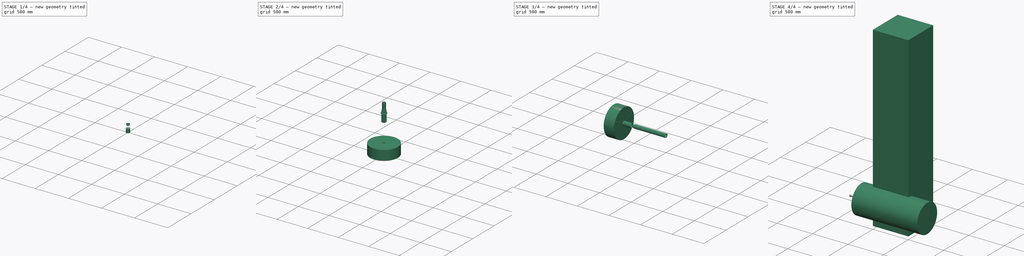
[diagram: build sequence overview — one tinted view per stage of 4, left to right]
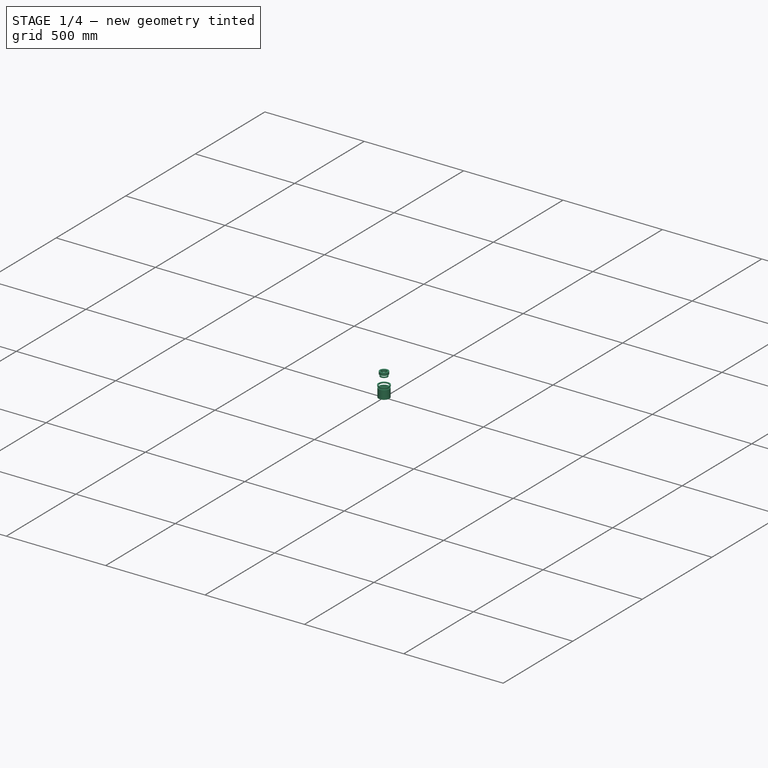
[diagram: stage 1 of 4 — iso view after this stage's code; geometry added in this stage tinted green]
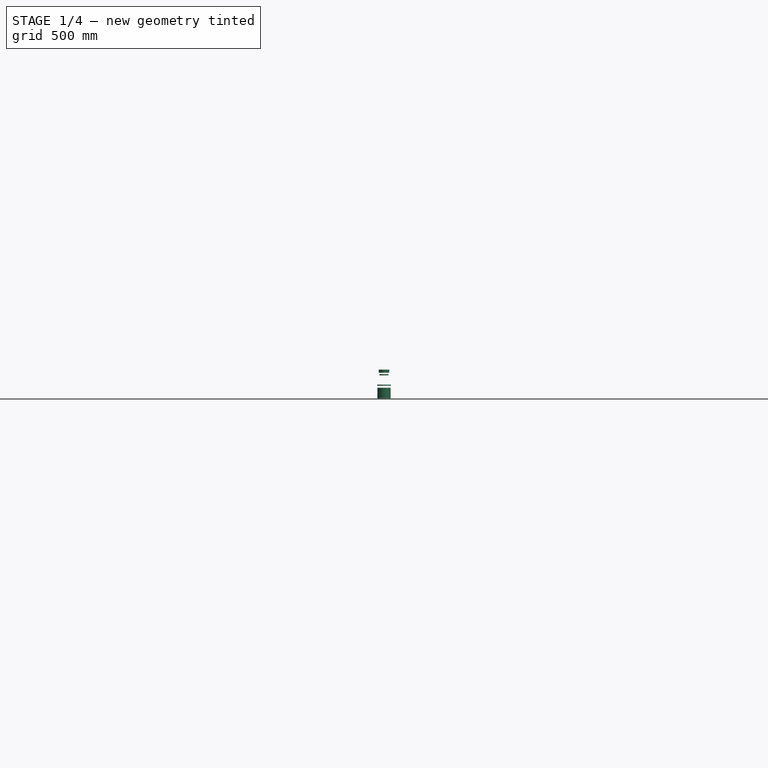
[diagram: stage 1 of 4 — front view after this stage's code; geometry added in this stage tinted green]
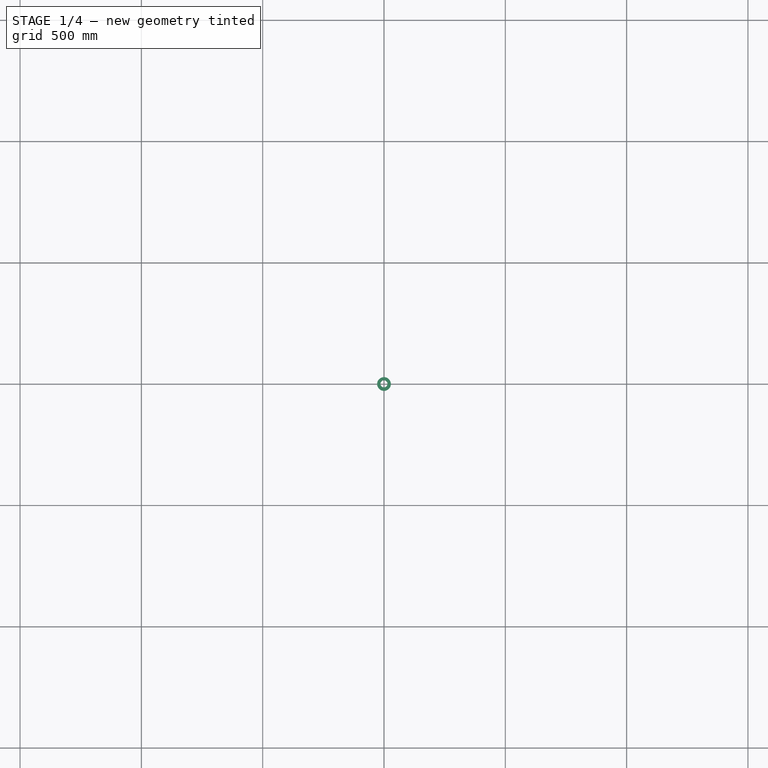
[diagram: stage 1 of 4 — top view after this stage's code; geometry added in this stage tinted green]
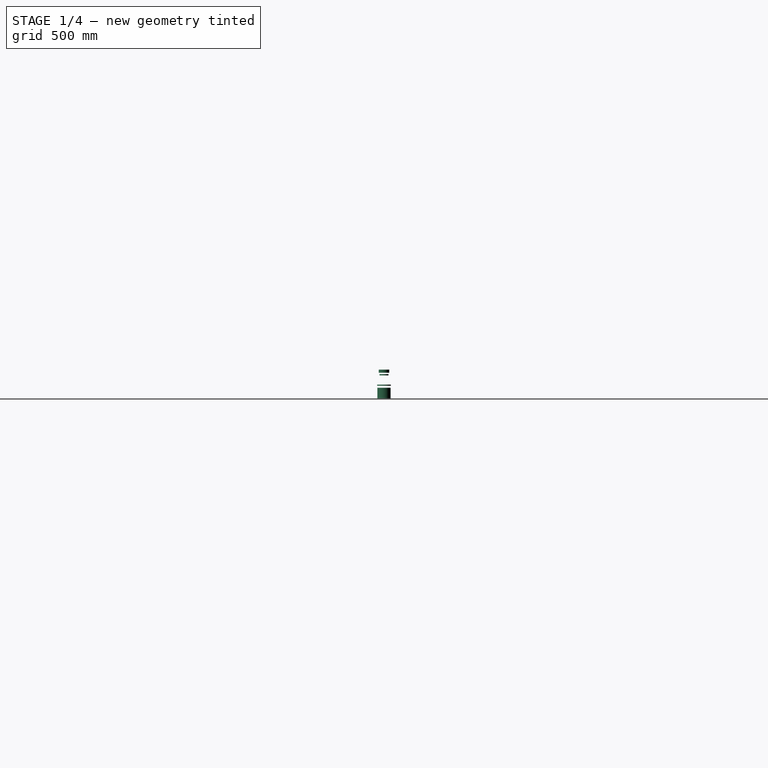
[diagram: stage 1 of 4 — right view after this stage's code; geometry added in this stage tinted green]
FCSTD DOCUMENT  (FreeCAD 0.20R29603 (Git))
Label: pseudoY0
License: All rights reserved
LicenseURL: http://en.wikipedia.org/wiki/All_rights_reserved
objects: Part::Feature×66, Sketcher::SketchObject×7, PartDesign::Revolution×7, PartDesign::Body×7, Part::MultiFuse×4, Part::Compound×1, Part::Cylinder×1, Part::Box×1, Part::Cut×1
note: 102 computed .brp shape members not serialized (recipe doc carries the construction recipe); baked Part::Feature solids carry a one-line shape summary decoded from their .brp

FEATURE [Sketcher::SketchObject] Sketch003
  FullyConstrained = false
  MapMode = 5
  Placement = pos=(0,0,0) rot=(0.57735,0.57735,0.57735;2.0944rad)
  Support = -> [YZ_Plane003]
  sketch-geometry (4):
    g0: LineSegment StartX=14.7194 StartY=182.505 StartZ=0 EndX=14.7194 EndY=169.649 EndZ=0
    g1: LineSegment StartX=14.7194 StartY=169.649 StartZ=0 EndX=21.7316 EndY=169.649 EndZ=0
    g2: LineSegment StartX=21.7316 StartY=169.649 StartZ=0 EndX=21.7316 EndY=182.505 EndZ=0
    g3: LineSegment StartX=21.7316 StartY=182.505 StartZ=0 EndX=14.7194 EndY=182.505 EndZ=0
  constraints (8):
    c: Vertical(g0)
    c: Coincident(g0,g1)
    c: Horizontal(g1)
    c: Coincident(g1,g2)
    c: Vertical(g2)
    c: Coincident(g2,g3)
    c: Coincident(g3,g0)
    c: Horizontal(g3)
FEATURE [PartDesign::Revolution] Revolution003
  AllowMultiFace = false
  Angle = 360
  Axis = (-2e-16,3e-16,1)
  Base = (0,0,0)
  Placement = pos=(0,0,0) rot=(0.57735,0.57735,0.57735;2.0944rad)
  Profile = -> Sketch003
  ReferenceAxis = -> Sketch003 [V_Axis]
  Reversed = true
FEATURE [PartDesign::Body] Body003  label="NozzlePatch1"
  Group = -> [Sketch003,Revolution003]
  Origin = -> Origin003
  Placement = pos=(0,0,600) rot=(0,0,1;0rad)
  Tip = -> Revolution003
FEATURE [Sketcher::SketchObject] Sketch004
  FullyConstrained = false
  MapMode = 5
  Placement = pos=(0,0,0) rot=(0.57735,0.57735,0.57735;2.0944rad)
  Support = -> [YZ_Plane004]
  sketch-geometry (4):
    g0: LineSegment StartX=14.4358 StartY=163.865 StartZ=0 EndX=18.5024 EndY=163.865 EndZ=0
    g1: LineSegment StartX=18.5024 StartY=163.865 StartZ=0 EndX=18.5024 EndY=158.746 EndZ=0
    g2: LineSegment StartX=18.5024 StartY=158.746 StartZ=0 EndX=14.4358 EndY=158.746 EndZ=0
    g3: LineSegment StartX=14.4358 StartY=158.746 StartZ=0 EndX=14.4358 EndY=163.865 EndZ=0
  constraints (8):
    c: Coincident(g0,g1)
    c: Coincident(g1,g2)
    c: Coincident(g2,g3)
    c: Coincident(g3,g0)
    c: Horizontal(g0)
    c: Horizontal(g2)
    c: Vertical(g1)
    c: Vertical(g3)
FEATURE [PartDesign::Revolution] Revolution004
  AllowMultiFace = false
  Angle = 360
  Axis = (-2e-16,3e-16,1)
  Base = (0,0,0)
  Placement = pos=(0,0,0) rot=(0.57735,0.57735,0.57735;2.0944rad)
  Profile = -> Sketch004
  ReferenceAxis = -> Sketch004 [V_Axis]
  Reversed = true
FEATURE [PartDesign::Body] Body004  label="NozzlePatch2"
  Group = -> [Sketch004,Revolution004]
  Origin = -> Origin004
  Placement = pos=(0,0,600) rot=(0,0,1;0rad)
  Tip = -> Revolution004
FEATURE [Sketcher::SketchObject] Sketch005
  FullyConstrained = false
  MapMode = 5
  Placement = pos=(0,0,0) rot=(0.57735,0.57735,0.57735;2.0944rad)
  Support = -> [YZ_Plane005]
  sketch-geometry (4):
    g0: LineSegment StartX=22.3843 StartY=120.786 StartZ=0 EndX=28.282 EndY=120.786 EndZ=0
    g1: LineSegment StartX=28.282 StartY=120.786 StartZ=0 EndX=28.282 EndY=115.977 EndZ=0
    g2: LineSegment StartX=28.282 StartY=115.977 StartZ=0 EndX=22.3843 EndY=115.977 EndZ=0
    g3: LineSegment StartX=22.3843 StartY=115.977 StartZ=0 EndX=22.3843 EndY=120.786 EndZ=0
  constraints (8):
    c: Coincident(g0,g1)
    c: Coincident(g1,g2)
    c: Coincident(g2,g3)
    c: Coincident(g3,g0)
    c: Horizontal(g0)
    c: Horizontal(g2)
    c: Vertical(g1)
    c: Vertical(g3)
FEATURE [PartDesign::Revolution] Revolution005
  AllowMultiFace = false
  Angle = 360
  Axis = (-2e-16,3e-16,1)
  Base = (0,0,0)
  Placement = pos=(0,0,0) rot=(0.57735,0.57735,0.57735;2.0944rad)
  Profile = -> Sketch005
  ReferenceAxis = -> Sketch005 [V_Axis]
  Reversed = true
FEATURE [PartDesign::Body] Body002  label="NozzlePatch5"
  Group = -> [Sketch002,Revolution007]
  Origin = -> Origin002
  Placement = pos=(0,0,600) rot=(0,0,1;0rad)
  Tip = -> Revolution007
FEATURE [PartDesign::Revolution] Revolution008
  AllowMultiFace = false
  Angle = 360
  Axis = (-2e-16,3e-16,1)
  Base = (0,0,0)
  Placement = pos=(0,0,0) rot=(0.57735,0.57735,0.57735;2.0944rad)
  Profile = -> Sketch006
  ReferenceAxis = -> Sketch006 [V_Axis]
  Reversed = true
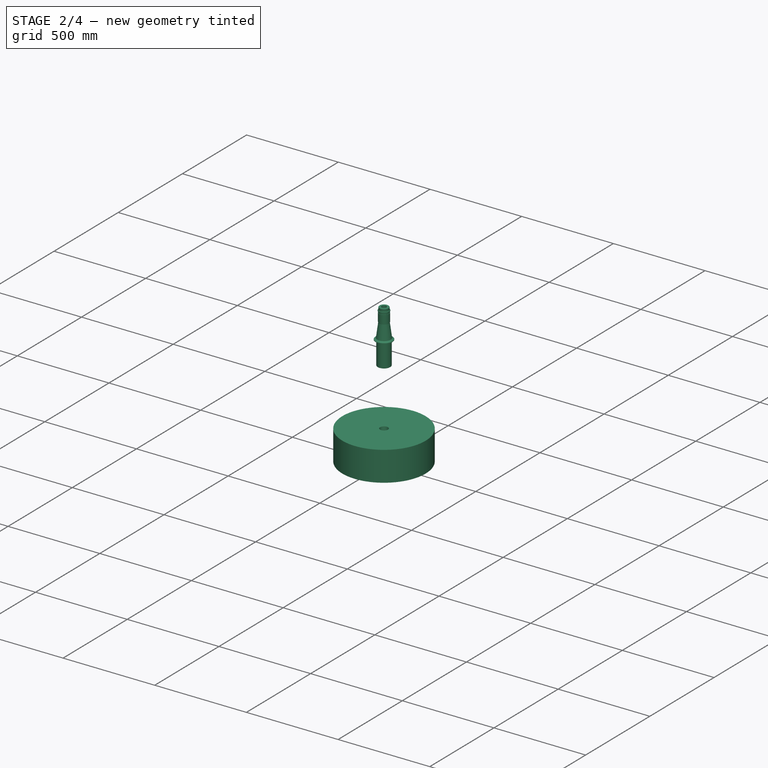
[diagram: stage 2 of 4 — iso view after this stage's code; geometry added in this stage tinted green]
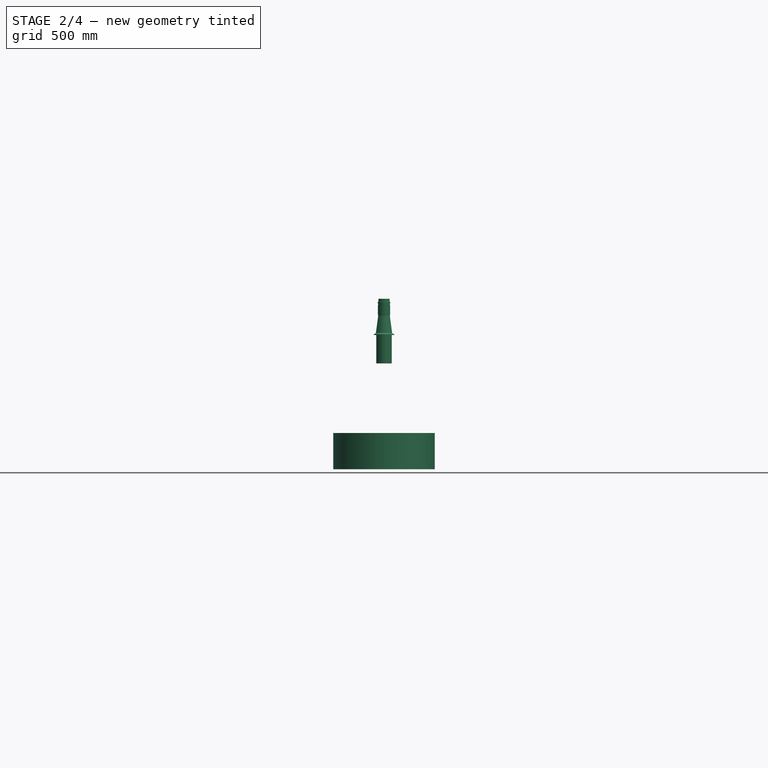
[diagram: stage 2 of 4 — front view after this stage's code; geometry added in this stage tinted green]
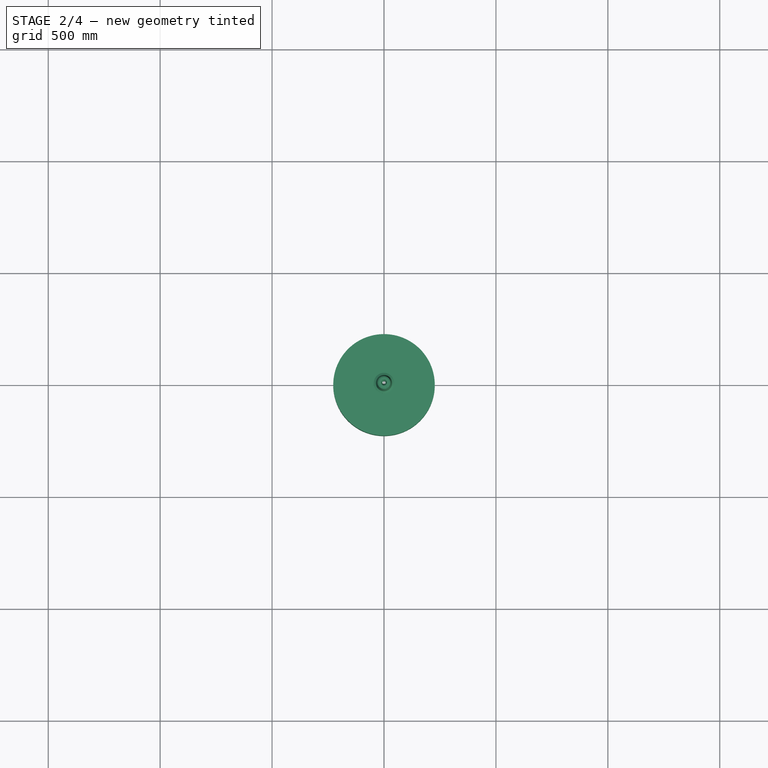
[diagram: stage 2 of 4 — top view after this stage's code; geometry added in this stage tinted green]
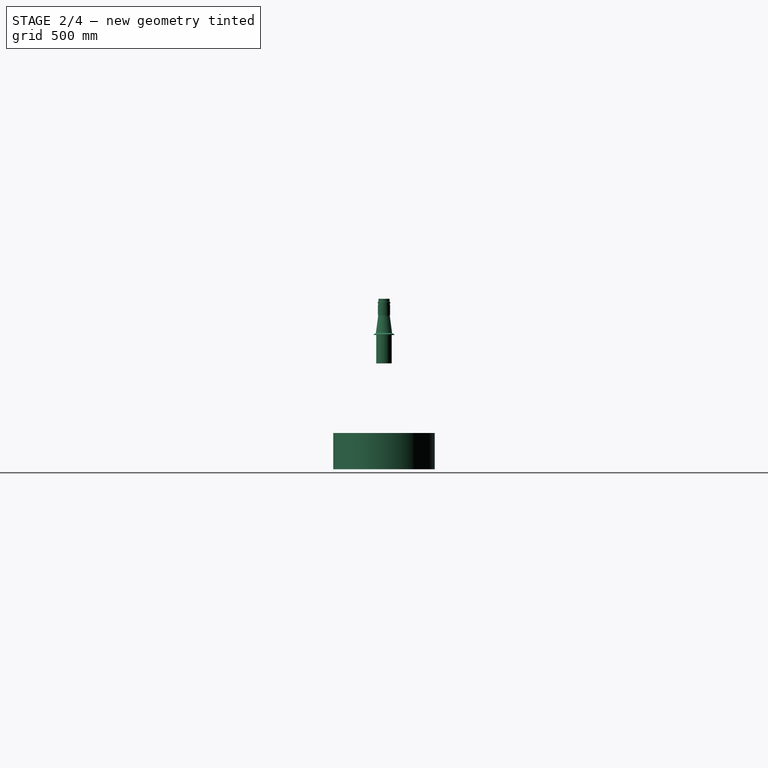
[diagram: stage 2 of 4 — right view after this stage's code; geometry added in this stage tinted green]
FEATURE [Sketcher::SketchObject] Sketch002
  FullyConstrained = false
  MapMode = 5
  Placement = pos=(0,0,0) rot=(0.57735,0.57735,0.57735;2.0944rad)
  Support = -> [YZ_Plane002]
  sketch-geometry (5):
    g0: LineSegment StartX=31.9833 StartY=73.9 StartZ=0 EndX=226.816 EndY=73.9 EndZ=0
    g1: LineSegment StartX=226.816 StartY=73.9 StartZ=0 EndX=226.816 EndY=236 EndZ=0
    g2: LineSegment StartX=226.816 StartY=236 StartZ=0 EndX=21.724 EndY=236 EndZ=0
    g3: LineSegment StartX=21.724 StartY=236 StartZ=0 EndX=17.3205 EndY=195.963 EndZ=0
    g4: LineSegment StartX=17.3205 StartY=195.963 StartZ=0 EndX=31.9833 EndY=73.9 EndZ=0
  constraints (10):
    c: Horizontal(g0)
    c: Coincident(g1,g0)
    c: Vertical(g1)
    c: Coincident(g2,g1)
    c: Horizontal(g2)
    c: Coincident(g4,g3)
    c: Coincident(g4,g0)
    c: DistanceY(g-1,g0) = 73.9
    c: DistanceY(g-1,g2) = 236
    c: Coincident(g2,g3)
FEATURE [Part::Feature] Part__Feature  label="Mach-4p5-Divergent-Mod"
  shape: bbox 238 x 92 x 120.9 mm, 33 faces (baked)
FEATURE [Part::Feature] Part__Feature001  label="Mach-4p5-Throat"
  shape: bbox 76 x 56.28 x 56.28 mm, 66 faces (baked)
FEATURE [Part::Feature] Part__Feature002  label="o-rings_33"
  Placement = pos=(20.5,0,0) rot=(0,1,0;1.5708rad)
  shape: bbox 3 x 42.21 x 42.21 mm, 4 faces (baked)
FEATURE [Part::Feature] Part__Feature003  label="o-rings_47"
  Placement = pos=(-18.4,0,0) rot=(0,-1,0;1.5708rad)
  shape: bbox 3 x 57.91 x 57.91 mm, 4 faces (baked)
FEATURE [Part::MultiFuse] Fusion  label="Nozzle"
  Placement = pos=(0,0,800) rot=(0,1,0;1.5708rad)
  Shapes = -> [Part__Feature,Part__Feature003,Part__Feature002,Part__Feature001]
FEATURE [PartDesign::Body] Body005  label="NozzlePatch3"
  Group = -> [Sketch005,Revolution005]
  Origin = -> Origin005
  Placement = pos=(0,0,700) rot=(0,0,1;0rad)
  Tip = -> Revolution005
FEATURE [Sketcher::SketchObject] Sketch006
  FullyConstrained = false
  MapMode = 5
  Placement = pos=(0,0,0) rot=(0.57735,0.57735,0.57735;2.0944rad)
  Support = -> [YZ_Plane006]
  sketch-geometry (8):
    g0: LineSegment StartX=18.2755 StartY=86.9822 StartZ=0 EndX=22.6622 EndY=86.9822 EndZ=0
    g1: LineSegment StartX=22.8225 StartY=83.2271 StartZ=0 EndX=18.2755 EndY=83.2271 EndZ=0
    g2: LineSegment StartX=18.2755 StartY=83.2271 StartZ=0 EndX=18.2755 EndY=86.9822 EndZ=0
    g3: LineSegment StartX=22.6622 StartY=86.9822 StartZ=0 EndX=22.6622 EndY=107.775 EndZ=0
    g4: LineSegment StartX=22.6622 StartY=107.775 StartZ=0 EndX=27.3936 EndY=107.775 EndZ=0
    g5: LineSegment StartX=27.3936 StartY=107.775 StartZ=0 EndX=27.3936 EndY=63.803 EndZ=0
    g6: LineSegment StartX=27.3936 StartY=63.803 StartZ=0 EndX=22.8225 EndY=63.803 EndZ=0
    g7: LineSegment StartX=22.8225 StartY=63.803 StartZ=0 EndX=22.8225 EndY=83.2271 EndZ=0
  constraints (16):
    c: Coincident(g1,g2)
    c: Coincident(g2,g0)
    c: Horizontal(g0)
    c: Horizontal(g1)
    c: Vertical(g2)
    c: Coincident(g0,g3)
    c: Vertical(g3)
    c: Coincident(g3,g4)
    c: Horizontal(g4)
    c: Coincident(g4,g5)
    c: Vertical(g5)
    c: Coincident(g5,g6)
    c: Horizontal(g6)
    c: Coincident(g6,g7)
    c: Coincident(g7,g1)
    c: Vertical(g7)
FEATURE [PartDesign::Revolution] Revolution007
  AllowMultiFace = false
  Angle = 360
  Axis = (-2e-16,3e-16,1)
  Base = (0,0,0)
  Placement = pos=(0,0,0) rot=(0.57735,0.57735,0.57735;2.0944rad)
  Profile = -> Sketch002
  ReferenceAxis = -> Sketch002 [V_Axis]
  Reversed = true
FEATURE [PartDesign::Body] Body006  label="NozzlePatch4"
  Group = -> [Sketch006,Revolution008]
  Origin = -> Origin006
  Placement = pos=(0,0,700) rot=(0,0,1;0rad)
  Tip = -> Revolution008
FEATURE [Part::MultiFuse] Fusion001  label="NozzlePartiallyPatched"
  Shapes = -> [Fusion,Body005,Body004,Body003,Body006]
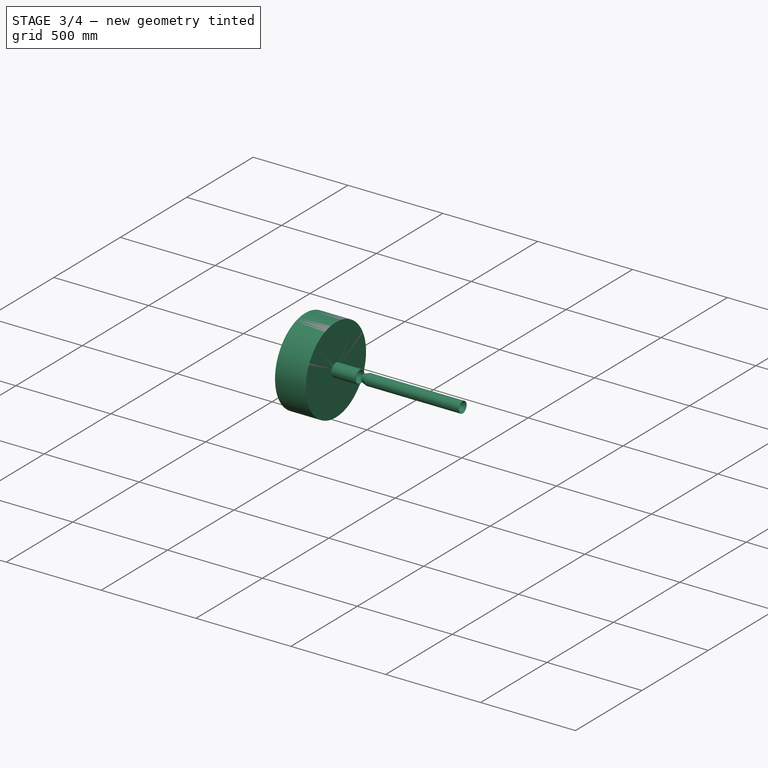
[diagram: stage 3 of 4 — iso view after this stage's code; geometry added in this stage tinted green]
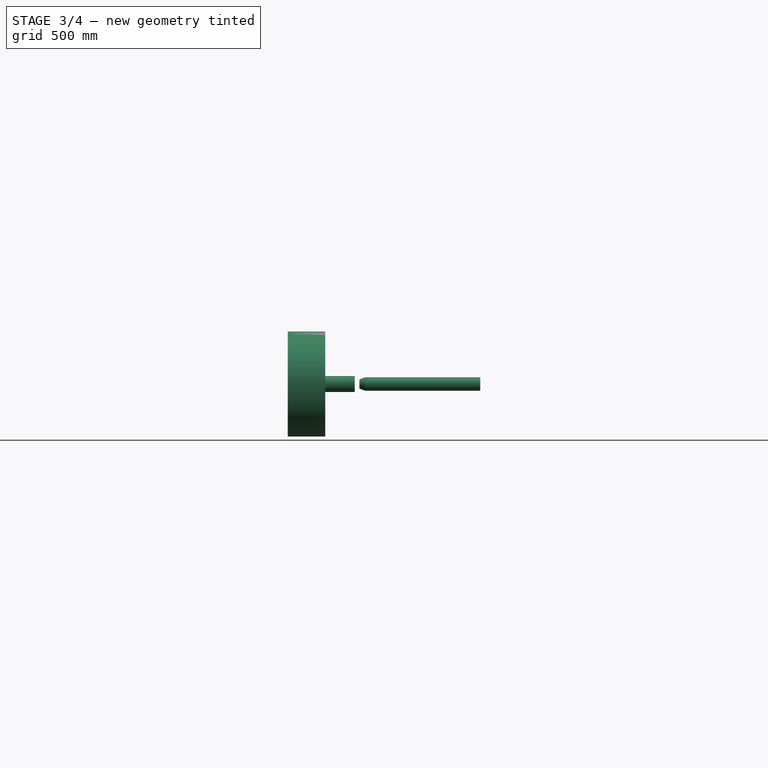
[diagram: stage 3 of 4 — front view after this stage's code; geometry added in this stage tinted green]
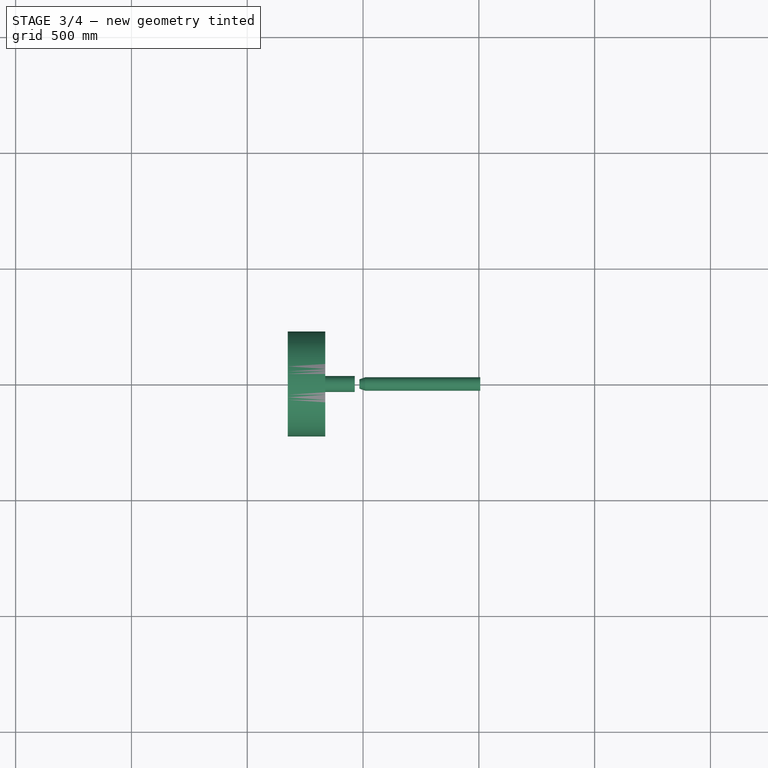
[diagram: stage 3 of 4 — top view after this stage's code; geometry added in this stage tinted green]
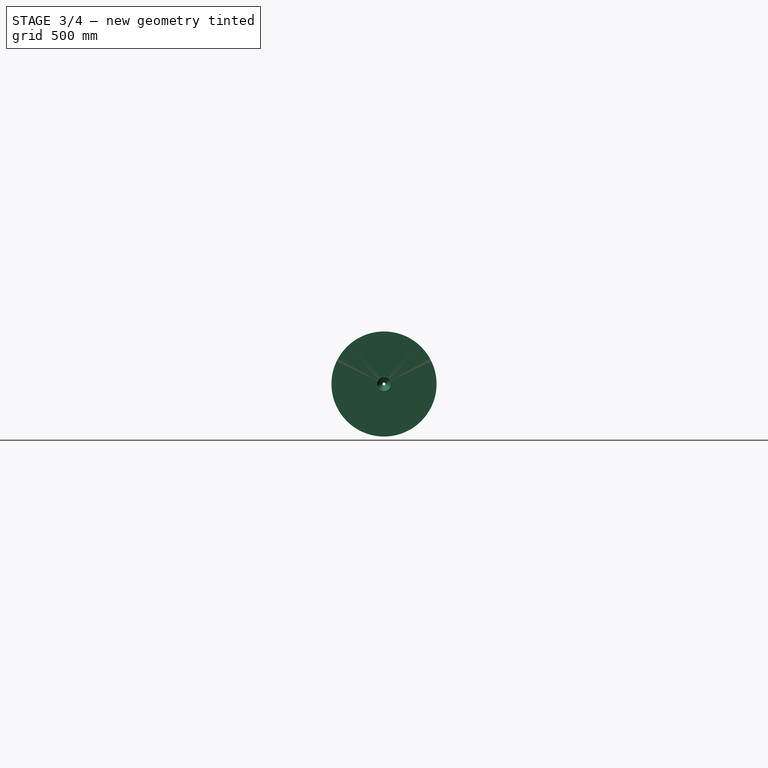
[diagram: stage 3 of 4 — right view after this stage's code; geometry added in this stage tinted green]
FEATURE [Part::Feature] Circular_scramjet_low_enthalpy_config
  Placement = pos=(0,0,0) rot=(0,1,0;3.14159rad)
  shape: bbox 101.6 x 129.9 x 56 mm, 208 faces, 0 solids (baked)
FEATURE [Part::Feature] Circular_scramjet_low_enthalpy_config001
  Placement = pos=(0,0,0) rot=(0.044282,0.999019,0;3.14159rad)
  shape: bbox 63.66 x 63.66 x 25.69 mm, 17 faces, 0 solids (baked)
FEATURE [Part::Feature] Circular_scramjet_low_enthalpy_config002
  Placement = pos=(0,59.8375,67) rot=(-0.939108,0.242978,0.242978;1.63358rad)
  shape: bbox 14.32 x 39.1 x 13.69 mm, 33 faces, 0 solids (baked)
FEATURE [Part::Feature] Circular_scramjet_low_enthalpy_config003
  Placement = pos=(0,59.8375,82) rot=(-0.939108,0.242978,0.242978;1.63358rad)
  shape: bbox 14.32 x 39.1 x 13.69 mm, 33 faces, 0 solids (baked)
FEATURE [Part::Feature] Circular_scramjet_low_enthalpy_config004
  Placement = pos=(0,59.8375,97) rot=(-0.939108,0.242978,0.242978;1.63358rad)
  shape: bbox 14.32 x 39.1 x 13.69 mm, 33 faces, 0 solids (baked)
FEATURE [Part::Feature] Circular_scramjet_low_enthalpy_config005
  Placement = pos=(0,59.8375,112) rot=(-0.939108,0.242978,0.242978;1.63358rad)
  shape: bbox 14.32 x 39.1 x 13.69 mm, 33 faces, 0 solids (baked)
FEATURE [Part::Feature] Circular_scramjet_low_enthalpy_config006
  Placement = pos=(0,59.8375,127) rot=(-0.939108,0.242978,0.242978;1.63358rad)
  shape: bbox 14.32 x 39.1 x 13.69 mm, 33 faces, 0 solids (baked)
FEATURE [Part::Feature] Circular_scramjet_low_enthalpy_config007
  Placement = pos=(0,59.8375,142) rot=(-0.939108,0.242978,0.242978;1.63358rad)
  shape: bbox 14.32 x 39.1 x 13.69 mm, 33 faces, 0 solids (baked)
FEATURE [Part::Feature] Circular_scramjet_low_enthalpy_config008
  Placement = pos=(0,59.8375,157) rot=(-0.939108,0.242978,0.242978;1.63358rad)
  shape: bbox 14.32 x 39.1 x 13.69 mm, 33 faces, 0 solids (baked)
FEATURE [Part::Feature] Circular_scramjet_low_enthalpy_config009
  Placement = pos=(0,59.8375,172) rot=(-0.939108,0.242978,0.242978;1.63358rad)
  shape: bbox 14.32 x 39.1 x 13.69 mm, 33 faces, 0 solids (baked)
FEATURE [Part::Feature] Circular_scramjet_low_enthalpy_config010
  Placement = pos=(0,59.8375,187) rot=(-0.939108,0.242978,0.242978;1.63358rad)
  shape: bbox 14.32 x 39.1 x 13.69 mm, 33 faces, 0 solids (baked)
FEATURE [Part::Feature] Circular_scramjet_low_enthalpy_config011
  Placement = pos=(0,59.8375,202) rot=(-0.939108,0.242978,0.242978;1.63358rad)
  shape: bbox 14.32 x 39.1 x 13.69 mm, 33 faces, 0 solids (baked)
FEATURE [Part::Feature] Circular_scramjet_low_enthalpy_config012
  Placement = pos=(0,59.8375,217) rot=(-0.939108,0.242978,0.242978;1.63358rad)
  shape: bbox 14.32 x 39.1 x 13.69 mm, 33 faces, 0 solids (baked)
FEATURE [Part::Feature] Circular_scramjet_low_enthalpy_config013
  Placement = pos=(0,59.8375,285) rot=(-0.939108,0.242978,0.242978;1.63358rad)
  shape: bbox 14.32 x 39.1 x 13.69 mm, 33 faces, 0 solids (baked)
FEATURE [Part::Feature] Circular_scramjet_low_enthalpy_config014
  Placement = pos=(0,59.8375,300) rot=(-0.939108,0.242978,0.242978;1.63358rad)
  shape: bbox 14.32 x 39.1 x 13.69 mm, 33 faces, 0 solids (baked)
FEATURE [Part::Feature] Circular_scramjet_low_enthalpy_config015
  Placement = pos=(0,59.8375,315) rot=(-0.939108,0.242978,0.242978;1.63358rad)
  shape: bbox 14.32 x 39.1 x 13.69 mm, 33 faces, 0 solids (baked)
FEATURE [Part::Feature] Circular_scramjet_low_enthalpy_config016
  Placement = pos=(0,59.8375,330) rot=(-0.939108,0.242978,0.242978;1.63358rad)
  shape: bbox 14.32 x 39.1 x 13.69 mm, 33 faces, 0 solids (baked)
FEATURE [Part::Feature] Circular_scramjet_low_enthalpy_config017
  Placement = pos=(0,59.8375,345) rot=(-0.939108,0.242978,0.242978;1.63358rad)
  shape: bbox 14.32 x 39.1 x 13.69 mm, 33 faces, 0 solids (baked)
FEATURE [Part::Feature] Circular_scramjet_low_enthalpy_config018
  Placement = pos=(0,59.8375,360) rot=(-0.939108,0.242978,0.242978;1.63358rad)
  shape: bbox 14.32 x 39.1 x 13.69 mm, 33 faces, 0 solids (baked)
FEATURE [Part::Feature] Circular_scramjet_low_enthalpy_config019
  Placement = pos=(0,59.8375,375) rot=(-0.939108,0.242978,0.242978;1.63358rad)
  shape: bbox 14.32 x 39.1 x 13.69 mm, 33 faces, 0 solids (baked)
FEATURE [Part::Feature] Circular_scramjet_low_enthalpy_config020
  Placement = pos=(0,59.8375,390) rot=(-0.939108,0.242978,0.242978;1.63358rad)
  shape: bbox 14.32 x 39.1 x 13.69 mm, 33 faces, 0 solids (baked)
FEATURE [Part::Feature] Circular_scramjet_low_enthalpy_config021
  Placement = pos=(0,59.8375,405) rot=(-0.939108,0.242978,0.242978;1.63358rad)
  shape: bbox 14.32 x 39.1 x 13.69 mm, 33 faces, 0 solids (baked)
FEATURE [Part::Feature] Circular_scramjet_low_enthalpy_config022
  Placement = pos=(0,59.8375,420) rot=(-0.939108,0.242978,0.242978;1.63358rad)
  shape: bbox 14.32 x 39.1 x 13.69 mm, 33 faces, 0 solids (baked)
FEATURE [Part::Feature] Circular_scramjet_low_enthalpy_config023
  Placement = pos=(0,59.8375,435) rot=(-0.939108,0.242978,0.242978;1.63358rad)
  shape: bbox 14.32 x 39.1 x 13.69 mm, 33 faces, 0 solids (baked)
FEATURE [Part::Feature] Circular_scramjet_low_enthalpy_config024
  Placement = pos=(0,0,251) rot=(0.92388,-0.382683,0;3.14159rad)
  shape: bbox 109.1 x 109.1 x 54 mm, 142 faces, 0 solids (baked)
FEATURE [Part::Feature] Circular_scramjet_low_enthalpy_config025
  Placement = pos=(-24.3952,-24.3952,251) rot=(0.382683,0.92388,0;3.14159rad)
  shape: bbox 20.83 x 20.83 x 54 mm, 67 faces, 0 solids (baked)
FEATURE [Part::Feature] Circular_scramjet_low_enthalpy_config026
  Placement = pos=(-24.3087,-24.3087,230) rot=(0.904622,0.374707,0.203111;2.22979rad)
  shape: bbox 9.504 x 9.504 x 10.6 mm, 24 faces, 0 solids (baked)
FEATURE [Part::Feature] Circular_scramjet_low_enthalpy_config027
  Placement = pos=(-24.3087,-24.3087,272) rot=(0.92388,0.382683,0;3.14159rad)
  shape: bbox 8.114 x 8.114 x 7.657 mm, 24 faces, 0 solids (baked)
FEATURE [Part::Feature] Circular_scramjet_low_enthalpy_config028
  Placement = pos=(24.3087,-24.3087,272) rot=(0.382683,0.92388,0;3.14159rad)
  shape: bbox 8.114 x 8.114 x 7.657 mm, 24 faces, 0 solids (baked)
FEATURE [Part::Feature] Circular_scramjet_low_enthalpy_config029
  Placement = pos=(24.3087,24.3087,272) rot=(-0.382683,0.92388,0;3.14159rad)
  shape: bbox 8.114 x 8.114 x 7.657 mm, 24 faces, 0 solids (baked)
FEATURE [Part::Feature] Circular_scramjet_low_enthalpy_config030
  Placement = pos=(-24.3087,24.3087,272) rot=(0.92388,-0.382683,0;3.14159rad)
  shape: bbox 8.114 x 8.114 x 7.657 mm, 24 faces, 0 solids (baked)
FEATURE [Part::Feature] Circular_scramjet_low_enthalpy_config031
  Placement = pos=(24.3087,-24.3087,230) rot=(0.342174,0.826081,0.447779;2.77481rad)
  shape: bbox 9.504 x 9.504 x 10.6 mm, 24 faces, 0 solids (baked)
FEATURE [Part::Feature] Circular_scramjet_low_enthalpy_config032
  Placement = pos=(24.3087,24.3087,230) rot=(-0.342174,0.826081,0.447779;3.50838rad)
  shape: bbox 9.504 x 9.504 x 10.6 mm, 24 faces, 0 solids (baked)
FEATURE [Part::Feature] Circular_scramjet_low_enthalpy_config033
  Placement = pos=(-24.3087,24.3087,230) rot=(0.904622,-0.374707,-0.203111;2.22979rad)
  shape: bbox 9.504 x 9.504 x 10.6 mm, 24 faces, 0 solids (baked)
FEATURE [Part::Feature] Circular_scramjet_low_enthalpy_config034
  Placement = pos=(24.3952,-24.3952,251) rot=(-0.382683,0.92388,0;3.14159rad)
  shape: bbox 20.83 x 20.83 x 54 mm, 67 faces, 0 solids (baked)
FEATURE [Part::Feature] Circular_scramjet_low_enthalpy_config035
  Placement = pos=(24.3952,24.3952,251) rot=(0.92388,-0.382683,0;3.14159rad)
  shape: bbox 20.83 x 20.83 x 54 mm, 67 faces, 0 solids (baked)
FEATURE [Part::Feature] Circular_scramjet_low_enthalpy_config036
  Placement = pos=(-24.3952,24.3952,251) rot=(0.92388,0.382683,0;3.14159rad)
  shape: bbox 20.83 x 20.83 x 54 mm, 67 faces, 0 solids (baked)
FEATURE [Part::Feature] Circular_scramjet_low_enthalpy_config037
  Placement = pos=(20.8597,-20.8597,251) rot=(0.92388,-0.382683,0;3.14159rad)
  shape: bbox 30.45 x 30.45 x 16.42 mm, 63 faces, 0 solids (baked)
FEATURE [Part::Feature] Circular_scramjet_low_enthalpy_config038
  Placement = pos=(-20.8597,-20.8597,251) rot=(-0.382683,0.92388,0;3.14159rad)
  shape: bbox 30.45 x 30.45 x 16.42 mm, 63 faces, 0 solids (baked)
FEATURE [Part::Feature] Circular_scramjet_low_enthalpy_config039
  Placement = pos=(-20.8597,20.8597,251) rot=(0.382683,0.92388,0;3.14159rad)
  shape: bbox 30.45 x 30.45 x 16.42 mm, 63 faces, 0 solids (baked)
FEATURE [Part::Feature] Circular_scramjet_low_enthalpy_config040
  Placement = pos=(20.8597,20.8597,251) rot=(0.92388,0.382683,0;3.14159rad)
  shape: bbox 30.45 x 30.45 x 16.42 mm, 63 faces, 0 solids (baked)
FEATURE [Part::Feature] Circular_scramjet_low_enthalpy_config041
  Placement = pos=(0,-68,225) rot=(0,-1,0;1.5708rad)
  shape: bbox 16 x 41 x 50.3 mm, 20 faces, 0 solids (baked)
FEATURE [Part::Feature] Circular_scramjet_low_enthalpy_config042
  Placement = pos=(0,-78.7,250) rot=(0,0,1;0rad)
  shape: bbox 120 x 12.7 x 50 mm, 48 faces, 0 solids (baked)
FEATURE [Part::Feature] Circular_scramjet_low_enthalpy_config043
  Placement = pos=(0,-77.176,266) rot=(0.650859,0.650859,-0.390852;3.88678rad)
  shape: bbox 10.87 x 17.53 x 12.54 mm, 27 faces, 0 solids (baked)
FEATURE [Part::Feature] Circular_scramjet_low_enthalpy_config044
  Placement = pos=(0,-77.176,237) rot=(0.087873,0.087873,0.992248;1.57858rad)
  shape: bbox 12.03 x 17.53 x 9.319 mm, 27 faces, 0 solids (baked)
FEATURE [Part::Feature] Circular_scramjet_low_enthalpy_config045
  Placement = pos=(0,-39.826,253) rot=(0.707107,0.707107,0;3.14159rad)
  shape: bbox 11.22 x 17.53 x 8.033 mm, 27 faces, 0 solids (baked)
FEATURE [Part::Feature] Circular_scramjet_low_enthalpy_config046
  Placement = pos=(0,0,362) rot=(0,0,1;3.14159rad)
  shape: bbox 47.63 x 47.63 x 200 mm, 87 faces, 0 solids (baked)
FEATURE [Part::Feature] Circular_scramjet_low_enthalpy_config047
  Placement = pos=(0,27.075,360) rot=(0.707107,0,-0.707107;3.14159rad)
  shape: bbox 16.64 x 9.525 x 168 mm, 28 faces, 0 solids (baked)
FEATURE [Part::Feature] Circular_scramjet_low_enthalpy_config048
  Placement = pos=(0,0,446) rot=(0,1,0;3.14159rad)
  shape: bbox 58.7 x 102.5 x 60 mm, 34 faces, 0 solids (baked)
FEATURE [Part::Feature] Circular_scramjet_low_enthalpy_config049
  Placement = pos=(0,-68,446) rot=(0,-1,0;1.5708rad)
  shape: bbox 16 x 41 x 50.3 mm, 20 faces, 0 solids (baked)
FEATURE [Part::Feature] Circular_scramjet_low_enthalpy_config050
  Placement = pos=(0,-78.7,471) rot=(0,0,1;0rad)
  shape: bbox 120 x 12.7 x 50 mm, 48 faces, 0 solids (baked)
FEATURE [Part::Feature] Circular_scramjet_low_enthalpy_config051
  Placement = pos=(0,-77.176,487) rot=(0,0,1;1.5708rad)
  shape: bbox 11.22 x 17.53 x 8.033 mm, 27 faces, 0 solids (baked)
FEATURE [Part::Feature] Circular_scramjet_low_enthalpy_config052
  Placement = pos=(0,-77.176,458) rot=(0.707107,0.707107,0;3.14159rad)
  shape: bbox 11.22 x 17.53 x 8.033 mm, 27 faces, 0 solids (baked)
FEATURE [Part::Feature] Circular_scramjet_low_enthalpy_config053
  Placement = pos=(0,-39.826,474) rot=(0,0,1;1.5708rad)
  shape: bbox 11.22 x 17.53 x 8.033 mm, 27 faces, 0 solids (baked)
FEATURE [Part::Feature] Circular_scramjet_low_enthalpy_config054
  Placement = pos=(0,0,140) rot=(1,0,0;3.14159rad)
  shape: bbox 47.63 x 47.63 x 200 mm, 87 faces, 0 solids (baked)
FEATURE [Part::Feature] Circular_scramjet_low_enthalpy_config055
  Placement = pos=(0,27.075,142) rot=(0.707107,0,0.707107;3.14159rad)
  shape: bbox 16.64 x 9.525 x 168 mm, 28 faces, 0 solids (baked)
FEATURE [Part::Compound] Compound  label="ExperimentCAD"
  Links = -> [Circular_scramjet_low_enthalpy_config,Circular_scramjet_low_enthalpy_config036,Circular_scramjet_low_enthalpy_config030,Circular_scramjet_low_enthalpy_config034,Circular_scramjet_low_enthalpy_config004,Circular_scramjet_low_enthalpy_config001,Circular_scramjet_low_enthalpy_config005,Circular_scramjet_low_enthalpy_config008,Circular_scramjet_low_enthalpy_config028,+47 more]
FEATURE [Part::Feature] Compound_cs  label="ExperimentCADCS"
  shape: bbox 0.01139 x 138.5 x 521.9 mm, 0 faces, 0 solids (baked)
FEATURE [Sketcher::SketchObject] Sketch
  FullyConstrained = false
  MapMode = 5
  Placement = pos=(0,0,0) rot=(0.57735,0.57735,0.57735;2.0944rad)
  Support = -> [YZ_Plane]
  sketch-geometry (5):
    g0: LineSegment StartX=17.4511 StartY=-1.97739 StartZ=0 EndX=19.9 EndY=-15.8946 EndZ=0
    g1: LineSegment StartX=19.9 StartY=-15.8946 StartZ=0 EndX=28.9991 EndY=9.10592 EndZ=0
    g2: LineSegment StartX=28.9991 StartY=9.10592 StartZ=0 EndX=29.0003 EndY=505.999 EndZ=0
    g3: LineSegment StartX=29.0003 StartY=505.999 StartZ=0 EndX=17.5003 EndY=486.082 EndZ=0
    g4: LineSegment StartX=17.5003 StartY=486.082 StartZ=0 EndX=17.4511 EndY=-1.97739 EndZ=0
  constraints (13):
    c: DistanceX(g0) = 19.9
    c: DistanceY(g0) = -15.8946
    c: Coincident(g1,g2)
    c: Coincident(g0,g4)
    c: Coincident(g3,g4)
    c: DistanceX(g1) = 28.9991
    c: DistanceY(g1) = 9.10592
    c: DistanceX(g3) = 17.5003
    c: DistanceY(g3) = 486.082
    c: DistanceX(g2) = 29.0003
    c: DistanceY(g2) = 505.999
    c: Coincident(g0,g1)
    c: Coincident(g2,g3)
FEATURE [PartDesign::Revolution] Revolution
  AllowMultiFace = false
  Angle = 360
  Axis = (-2e-16,3e-16,1)
  Base = (0,0,0)
  Placement = pos=(0,0,0) rot=(0.57735,0.57735,0.57735;2.0944rad)
  Profile = -> Sketch
  ReferenceAxis = -> Sketch [V_Axis]
  Reversed = true
FEATURE [Part::MultiFuse] Fusion002  label="NozzlePatched"
  Placement = pos=(0,0,511) rot=(1,0,0;3.14159rad)
  Shapes = -> [Fusion001,Body002]
FEATURE [Part::MultiFuse] Fusion003
  Placement = pos=(0,0,0) rot=(0,1,0;1.5708rad)
  Shapes = -> [Body,Fusion002]
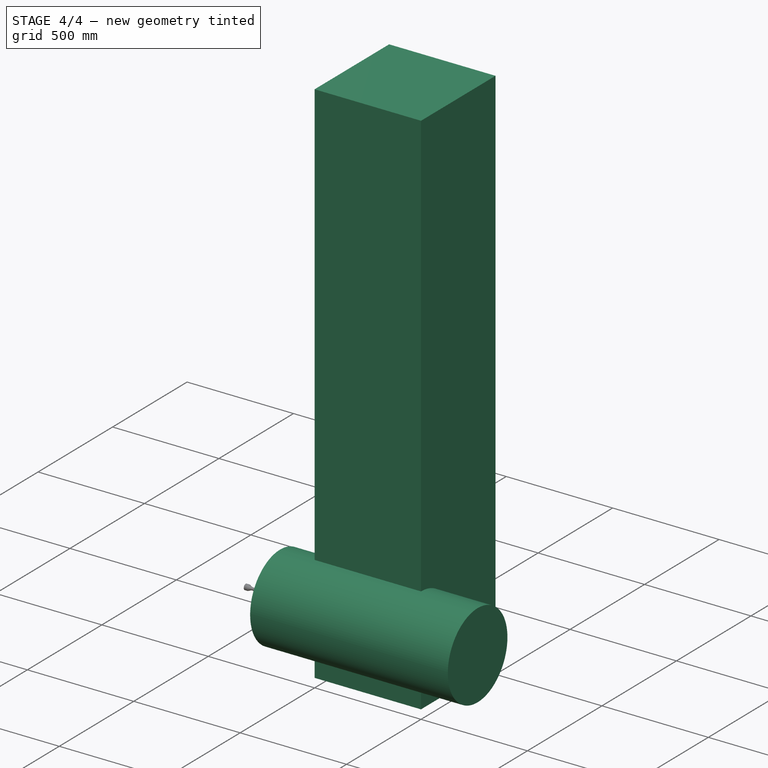
[diagram: stage 4 of 4 — iso view after this stage's code; geometry added in this stage tinted green]
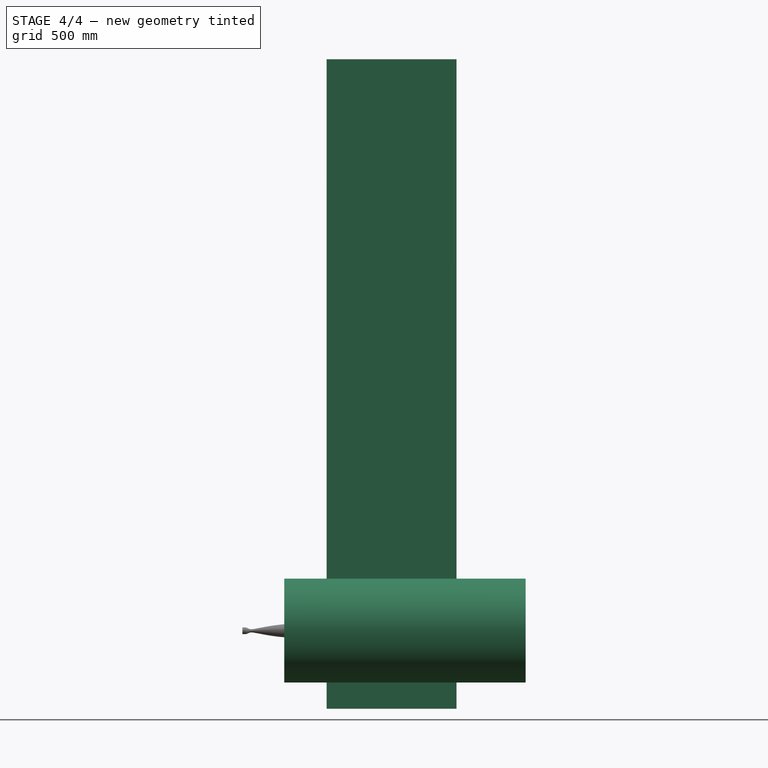
[diagram: stage 4 of 4 — front view after this stage's code; geometry added in this stage tinted green]
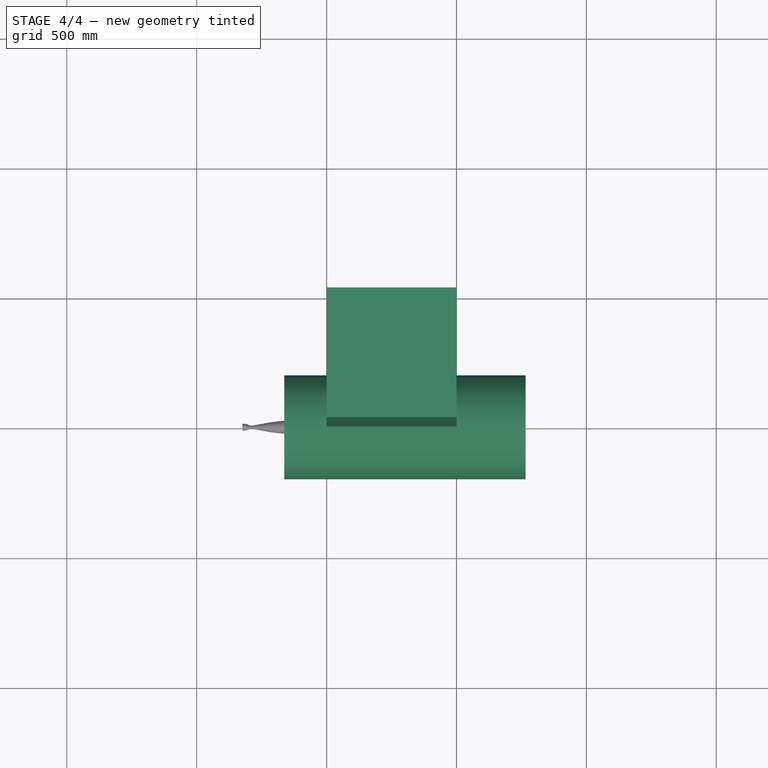
[diagram: stage 4 of 4 — top view after this stage's code; geometry added in this stage tinted green]
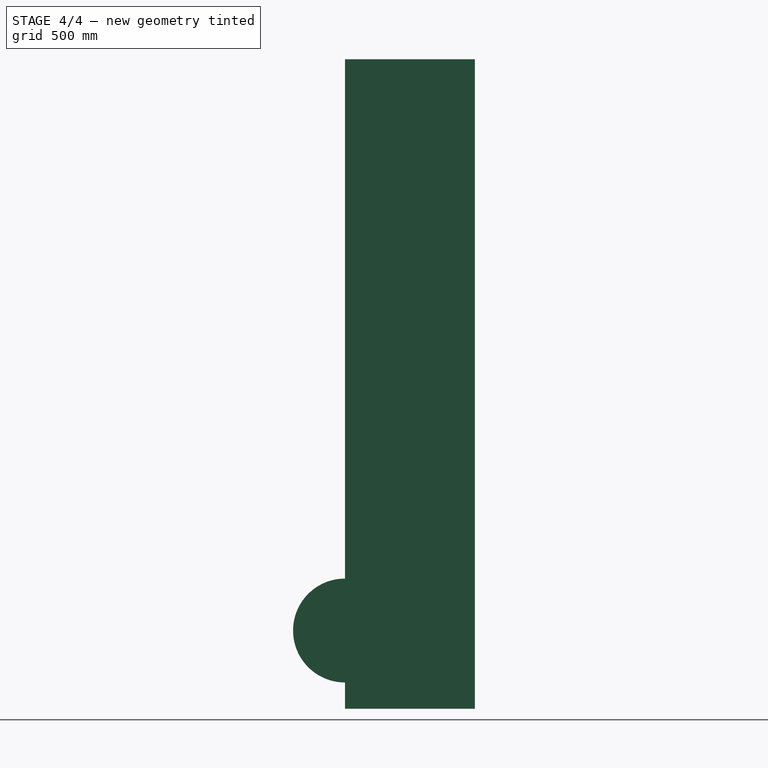
[diagram: stage 4 of 4 — right view after this stage's code; geometry added in this stage tinted green]
FEATURE [PartDesign::Body] Body  label="Scramjet"
  Group = -> [Sketch,Revolution]
  Origin = -> Origin
  Tip = -> Revolution
FEATURE [Sketcher::SketchObject] Sketch001
  FullyConstrained = false
  MapMode = 5
  Placement = pos=(0,0,0) rot=(0.57735,0.57735,0.57735;2.0944rad)
  Support = -> [YZ_Plane001]
  sketch-geometry (3):
    g0: LineSegment StartX=33 StartY=-54.5 StartZ=0 EndX=33 EndY=-150 EndZ=0
    g1: LineSegment StartX=33 StartY=-54.5 StartZ=0 EndX=24.3437 EndY=-150 EndZ=0
    g2: LineSegment StartX=24.3437 StartY=-150 StartZ=0 EndX=33 EndY=-150 EndZ=0
  constraints (8):
    c: Coincident(g1,g2)
    c: Vertical(g0)
    c: DistanceX(g0) = 33
    c: DistanceY(g0) = -54.5
    c: Horizontal(g2)
    c: Coincident(g0,g2)
    c: DistanceY(g0,g0) = 95.5
    c: Coincident(g0,g1)
FEATURE [Part::Feature] Body_cs  label="TestSectionCS"
  shape: bbox 0.003756 x 58 x 521.9 mm, 0 faces, 0 solids (baked)
FEATURE [PartDesign::Revolution] Revolution001
  AllowMultiFace = false
  Angle = 360
  Axis = (-2e-16,3e-16,1)
  Base = (0,0,0)
  Placement = pos=(0,0,0) rot=(0.57735,0.57735,0.57735;2.0944rad)
  Profile = -> Sketch001
  ReferenceAxis = -> Sketch001 [V_Axis]
  Reversed = true
FEATURE [PartDesign::Body] Body001  label="FakeNozzle"
  Group = -> [Sketch001,Revolution001]
  Origin = -> Origin001
  Tip = -> Revolution001
FEATURE [Part::Feature] Body001_cs  label="NozzleCS"
  shape: bbox 3e-07 x 66 x 95.5 mm, 0 faces, 0 solids (baked)
FEATURE [Part::Cylinder] Cylinder
  Angle = 360
  AttacherType = Attacher::AttachEngine3D
  FirstAngle = 0
  Height = 1090
  Placement = pos=(-324,0,1) rot=(0,1,0;1.5708rad)
  Radius = 200
  SecondAngle = 0
FEATURE [Part::Box] Box  label="Cube"
  AttacherType = Attacher::AttachEngine3D
  Height = 2500
  Length = 500
  Placement = pos=(0,0,-300) rot=(0,0,1;0rad)
  Width = 500
FEATURE [Part::Cut] Cut
  Base = -> Cylinder
  Tool = -> Fusion003
FEATURE [Part::Feature] Cut_cs
  shape: bbox 1090 x 400 x 0.003756 mm, 0 faces, 0 solids (baked)
FEATURE [Part::Feature] Cut_cs_cs
FEATURE [Part::Feature] Cut_cs_cs001
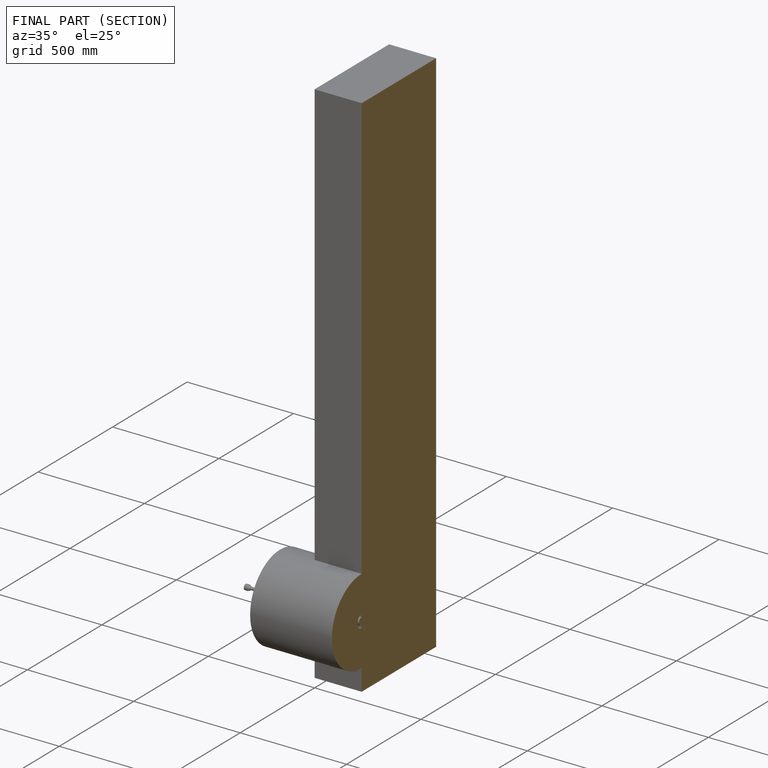
[diagram: finished part — half-section view (interior)]
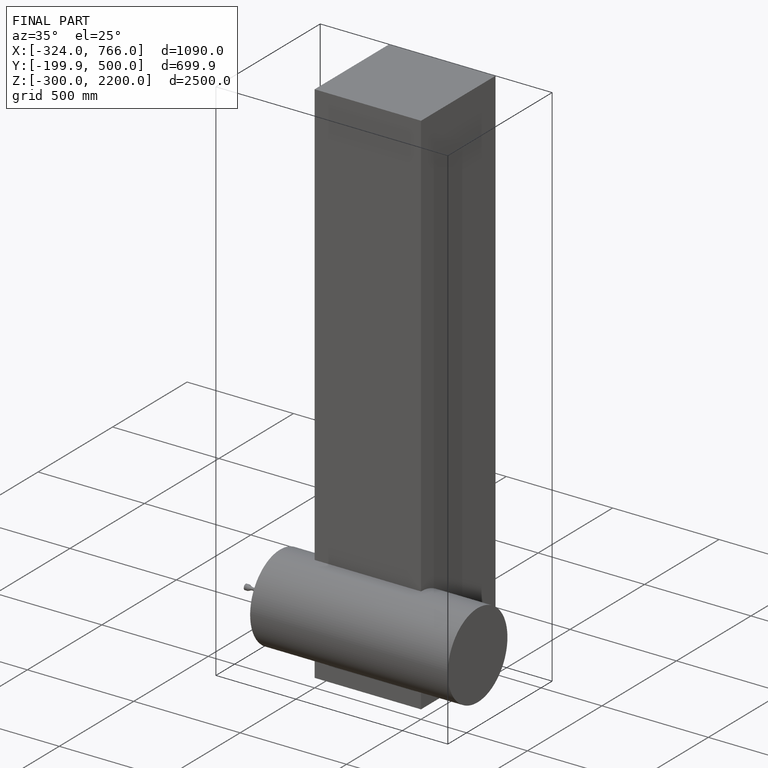
[diagram: finished part — iso view with bounding-box wireframe]
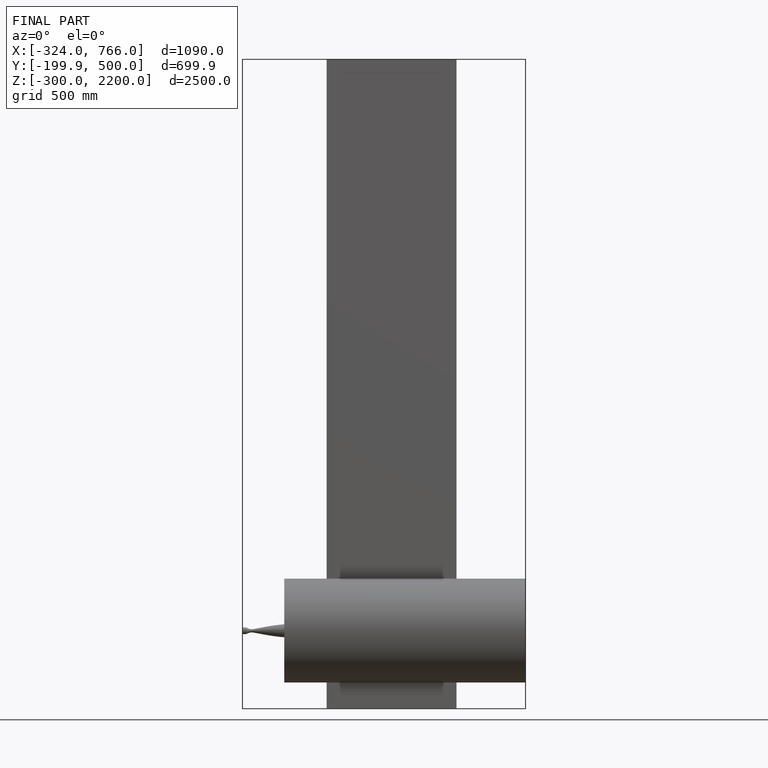
[diagram: finished part — front view with bounding-box wireframe]
